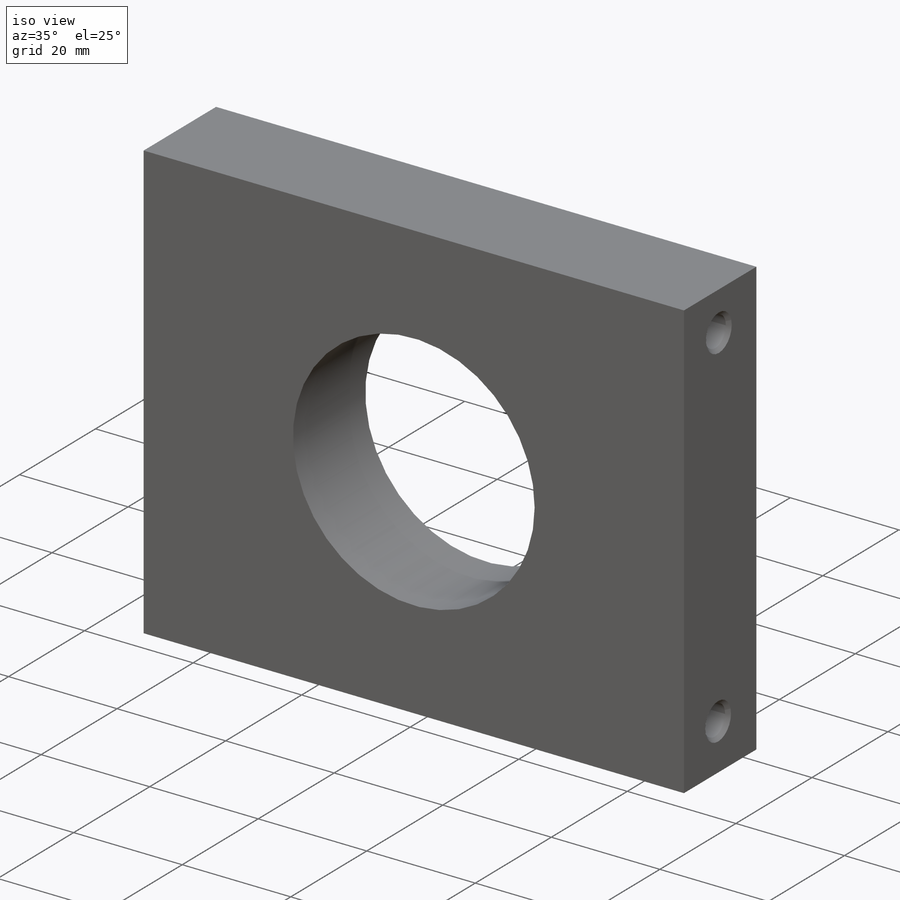
[diagram: iso view]
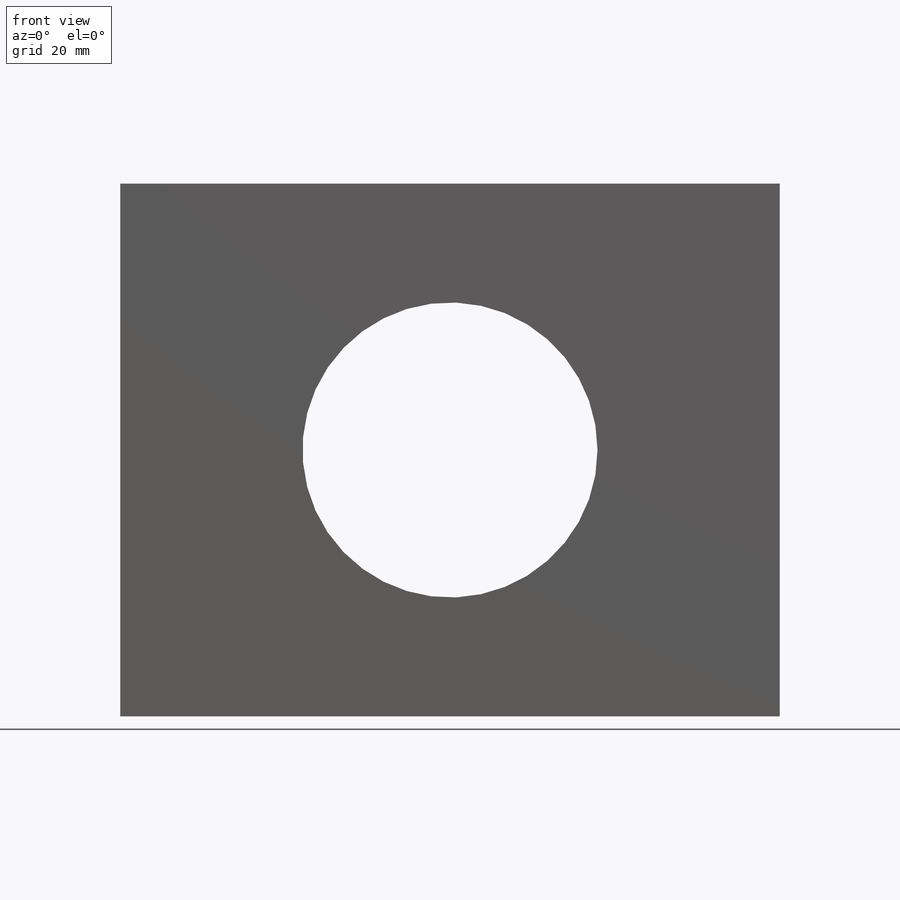
[diagram: front view]
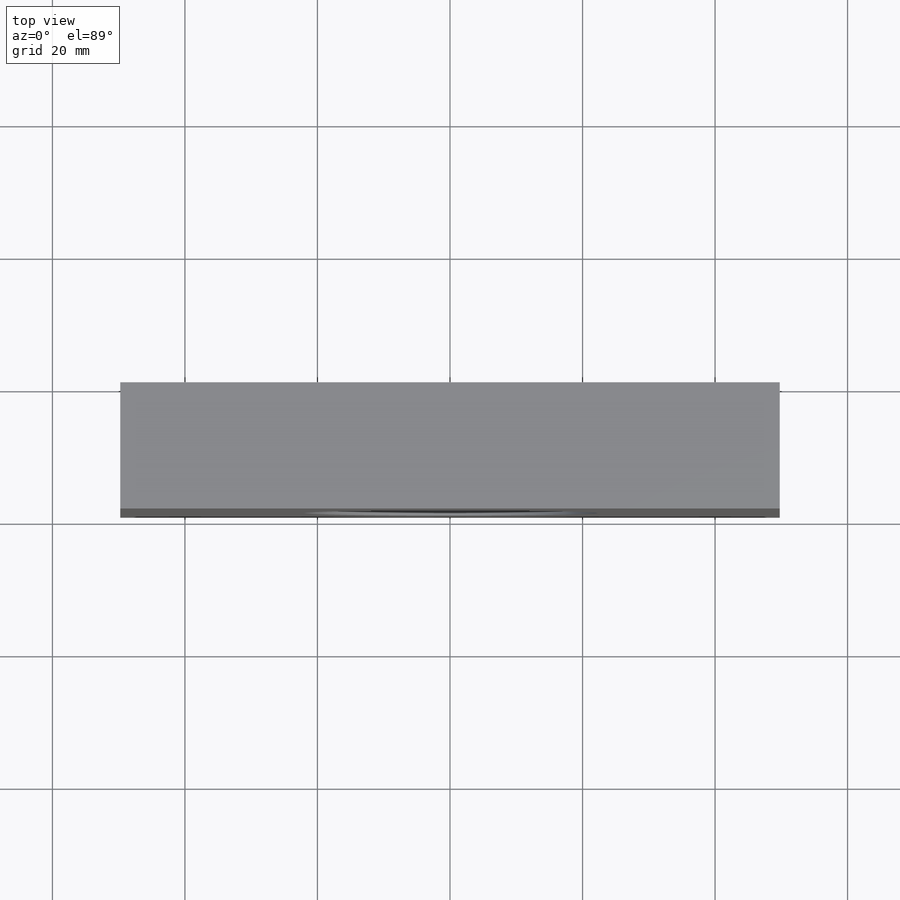
[diagram: top view]
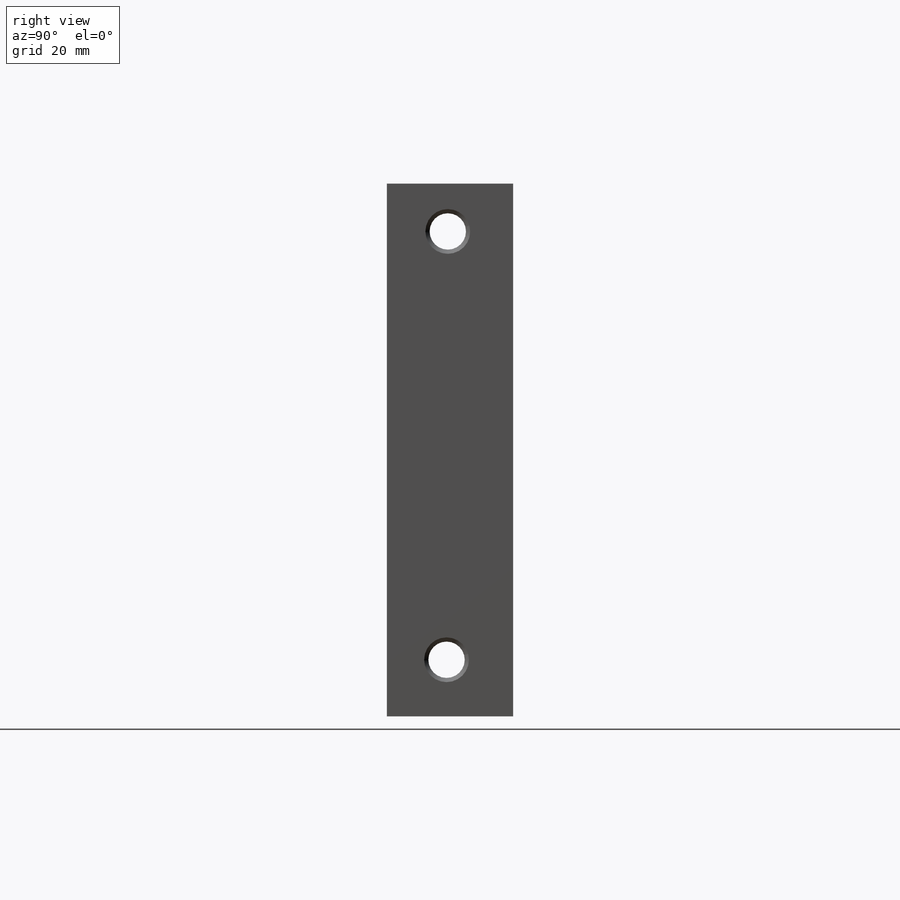
[diagram: right view]
SOLIDWORKS PART (.sldprt)
format: sldprt  version: not decoded by parser v0  size: 252,928 bytes
history: native  units: mm
features: sketch x4, material x1, extrude x1, cut_extrude x1, hole x1 (+15 scaffold rows collapsed)
feature tree (23):
  scaffold x15  (default folders/planes/origin — collapsed)
  material  "Material <not specified>"
  sketch  "Sketch1"  dims[D1=~80.386282mm D2=~99.549073mm]
  extrude  "Extrude2"  Depth=19.05mm
  sketch  "Sketch2"  dims[D1=44.5262mm]
  cut_extrude  "Extrude3"  [1 undecoded]
  hole  "#12-24 Tapped Hole1"  Diameter=5.4864mm Depth=99.549073mm
  sketch  "3DSketch1"
  sketch  "Sketch3"  dims[hole-wizard template sketch: 54 standard entries collapsed; hole parameters kept: c17.Thread Major Dia.=5.4864mm c17.Thru Tap Drill Depth=~99.549073mm c17.Near C'Sink Dia.=6.7564mm c17.D4=~3.666174mm c17.Near C'Sink Angle=90.0deg]
decode coverage: 5 of 7 modeling features carry decoded parameters
note: ~ marks probable driven/reference dimensions
note: 1 parameter value undecoded
note: suppression state not decoded; provenance and decode notes live in map.json
